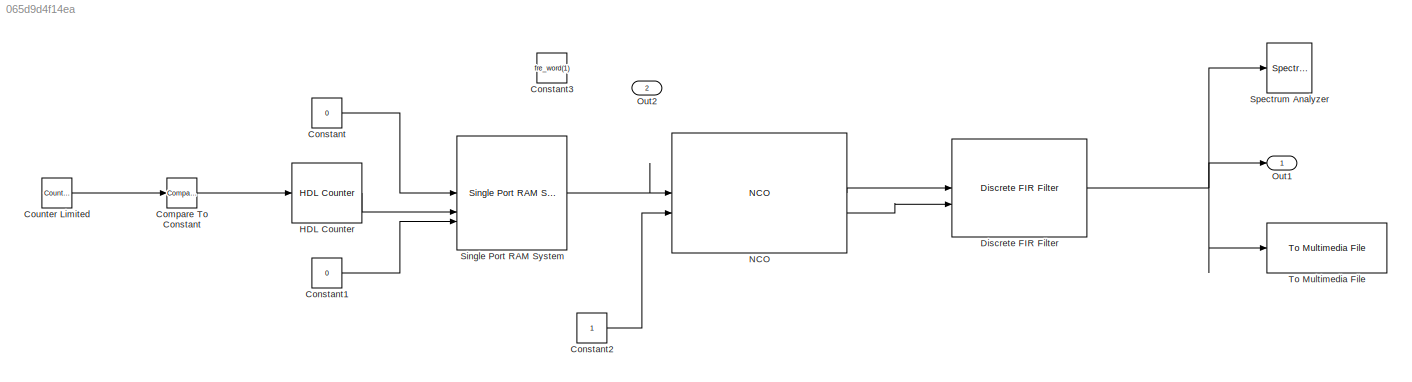
MODEL slx_065d9d4f14ea
KIND model
CONFIG AbsTol = auto
CONFIG EnableMultiTasking = off
CONFIG FixedStep = auto
CONFIG MaxStep = auto
CONFIG MinStep = auto
CONFIG RelTol = 1e-3
CONFIG SampleTimeConstraint = Unconstrained
CONFIG SolverName = VariableStepAuto
CONFIG StartTime = 0.0
CONFIG StopTime = 500
BLOCK [Reference] Compare To Constant  REF=hdlsllib/Logic and Bit
Operations/Compare
To Constant
  SourceBlock = hdlsllib/Logic and Bit\nOperations/Compare\nTo Constant
  SourceType = Compare To Constant
BLOCK [Constant] Constant
  OutDataTypeStr = uint16
  SampleTime = 1/clk
  Value = 0
BLOCK [Constant] Constant1
  OutDataTypeStr = boolean
  SampleTime = 1/clk
  Value = 0
BLOCK [Constant] Constant2
  OutDataTypeStr = boolean
  SampleTime = 1/clk
BLOCK [Constant] Constant3
  SampleTime = 1/clk
  Value = fre_word(1)
BLOCK [Reference] Counter Limited  REF=hdlsllib/Sources/Counter
Limited
  SourceBlock = hdlsllib/Sources/Counter\nLimited
  SourceType = Counter Limited
BLOCK [Reference] Discrete FIR Filter  REF=dsphdlfiltering2/Discrete FIR Filter
  SourceBlock = dsphdlfiltering2/Discrete FIR Filter
  SourceType = Discrete FIR Filter
BLOCK [Reference] HDL Counter  REF=hdlsllib/Sources/HDL Counter
  SourceBlock = hdlsllib/Sources/HDL Counter
  SourceType = HDL Counter
BLOCK [Reference] NCO  REF=dsphdlsigops2/NCO
  LibrarySourceBlock = dsphdlsrcs2/NCO
  SourceBlock = dsphdlsigops2/NCO
  SourceType = NCO
BLOCK [Outport] Out1
  VectorParamsAs1DForOutWhenUnconnected = off
BLOCK [Outport] Out2
  Port = 2
  VectorParamsAs1DForOutWhenUnconnected = off
BLOCK [Reference] Single Port RAM System  REF=hdlsllib/HDL RAMs/Single Port RAM System
  SourceBlock = hdlsllib/HDL RAMs/Single Port RAM System
  SourceType = hdl.RAM
BLOCK [SpectrumAnalyzer] Spectrum Analyzer
  GraphicalSettings = {"GraphicalSettings":{"Style":{"BackgroundColor":[0.12941176470588237,0.12941176470588237,0.12941176470588237],"AxesColor":[0.07058823529411765,0.07058823529411765,0.07058823529411765],"LabelsColor":[0.8509803921568627,0.8509803921568627,0.8509803921568627],"PreserveColors":false,"Visible":[true],"LineStyle":["-"],"LineColor":[[1,1,0.06666666666666667]],"LineWidth":[1.5],"Marker":["none"],"FontSiz...<+929ch>
  ScopeFrameLocation = window
  Span = 1000
  StartFrequency = -500
  StopFrequency = 500
  Visible = on
  WasSavedAsWebScope = on
  WindowPosition = [368.000000,182.000000,800.000000,500.000000,]
  YLimits = [-26.99054561,23.61273543]
BLOCK [Reference] To Multimedia File  REF=dspvision/To Multimedia File
  LibrarySourceBlock = audiosinks/To Multimedia File
  SourceBlock = dspvision/To Multimedia File
  SourceType = To Multimedia File
LINE Compare To Constant:1 -> HDL Counter:1
LINE Constant1:1 -> Single Port RAM System:3
LINE Constant2:1 -> NCO:2
LINE Constant:1 -> Single Port RAM System:1
LINE Counter Limited:1 -> Compare To Constant:1
NET Discrete FIR Filter:1 -> Out1:1, Spectrum Analyzer:1, To Multimedia File:1
LINE HDL Counter:1 -> Single Port RAM System:2
LINE NCO:1 -> Discrete FIR Filter:1
LINE NCO:2 -> Discrete FIR Filter:2
LINE Single Port RAM System:1 -> NCO:1
note: NET lines group one-source signal fan-out (src -> all destinations, sorted); 1:1 wires keep LINE
